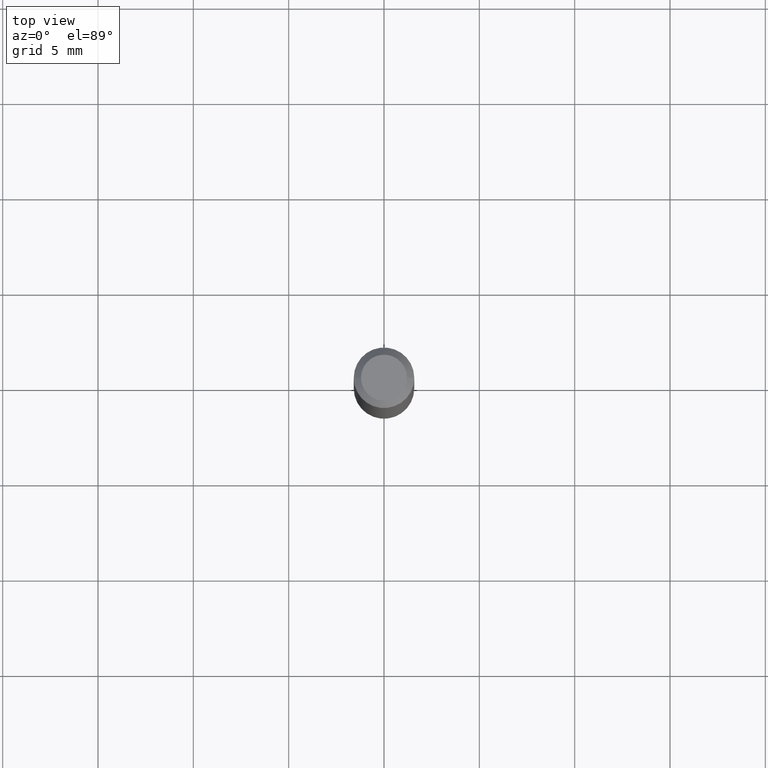
[diagram: clean part render]
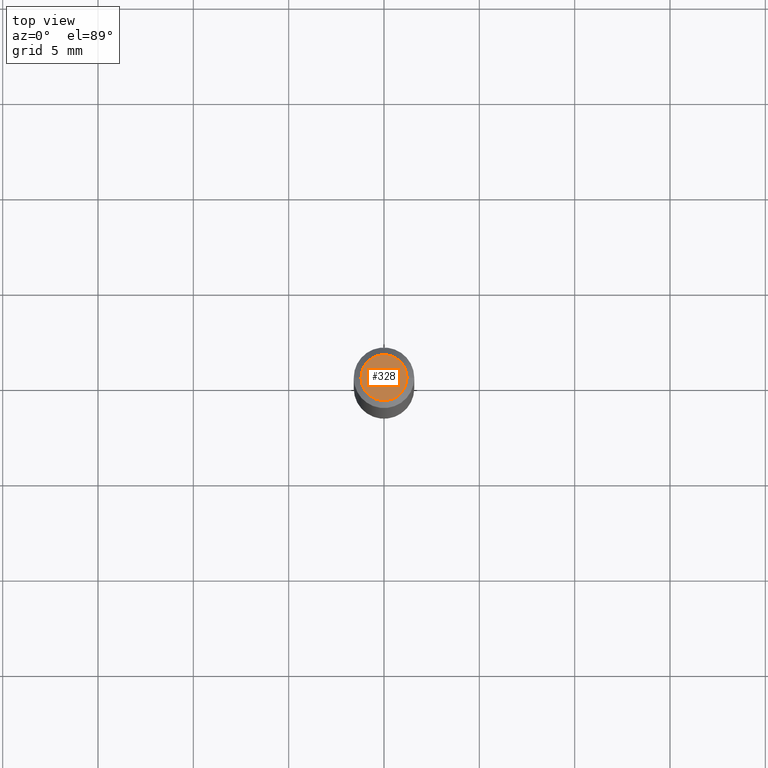
[diagram: same view with one face highlighted and labeled with its STEP entity id]
A machine part, top view. The second image highlights one B-rep face of the part: STEP entity #328.
In plain terms, the highlighted planar face has unit normal (0, -0, -1).
Its self-contained STEP definition (entity closure, byte-faithful):
#15 = CARTESIAN_POINT ( 'NONE',  ( 0.04749999999999999362, -4.035134999187576651E-16, 1.163426993633481204E-16 ) ) ;
#19 = ORIENTED_EDGE ( 'NONE', *, *, #351, .T. ) ;
#49 = DIRECTION ( 'NONE',  ( 1.000000000000000000, -6.982962677686267499E-15, 4.884662768193073002E-29 ) ) ;
#61 = CARTESIAN_POINT ( 'NONE',  ( -0.04749999999999999362, 3.578768372314212971E-16, 1.163426993633431407E-16 ) ) ;
#89 = EDGE_CURVE ( 'NONE', #122, #168, #113, .T. ) ;
#91 = DIRECTION ( 'NONE',  ( -1.000000000000000000, 6.982962677686265922E-15, -4.876176775795935793E-29 ) ) ;
#92 = PLANE ( 'NONE',  #214 ) ;
#96 = ORIENTED_EDGE ( 'NONE', *, *, #89, .T. ) ;
#113 = CIRCLE ( 'NONE', #377, 0.04749999999999999362 ) ;
#122 = VERTEX_POINT ( 'NONE', #15 ) ;
#129 = CARTESIAN_POINT ( 'NONE',  ( 3.316907271900976096E-16, 0.04749999999999999362, -1.076740139133766305E-16 ) ) ;
#152 = CARTESIAN_POINT ( 'NONE',  ( -2.845124421204368749E-45, 4.062083637377592914E-31, 1.163426993633455566E-16 ) ) ;
#160 = CARTESIAN_POINT ( 'NONE',  ( -2.845124421204368749E-45, 4.062083637377592914E-31, 1.163426993633455566E-16 ) ) ;
#161 = DIRECTION ( 'NONE',  ( -2.445468806185136597E-29, 3.491481338843145583E-15, 1.000000000000000000 ) ) ;
#162 = DIRECTION ( 'NONE',  ( 1.000000000000000000, -6.982962677686267499E-15, 4.884662768193073002E-29 ) ) ;
#168 = VERTEX_POINT ( 'NONE', #61 ) ;
#214 = AXIS2_PLACEMENT_3D ( 'NONE', #129, #380, #91 ) ;
#259 = AXIS2_PLACEMENT_3D ( 'NONE', #160, #339, #162 ) ;
#328 = ADVANCED_FACE ( 'NONE', ( #418 ), #92, .F. ) ;
#339 = DIRECTION ( 'NONE',  ( -2.445468806185136597E-29, 3.491481338843145583E-15, 1.000000000000000000 ) ) ;
#351 = EDGE_CURVE ( 'NONE', #168, #122, #423, .T. ) ;
#377 = AXIS2_PLACEMENT_3D ( 'NONE', #152, #161, #49 ) ;
#380 = DIRECTION ( 'NONE',  ( 2.438088387897960049E-29, -3.491481338843145188E-15, -1.000000000000000000 ) ) ;
#390 = EDGE_LOOP ( 'NONE', ( #19, #96 ) ) ;
#418 = FACE_OUTER_BOUND ( 'NONE', #390, .T. ) ;
#423 = CIRCLE ( 'NONE', #259, 0.04749999999999999362 ) ;